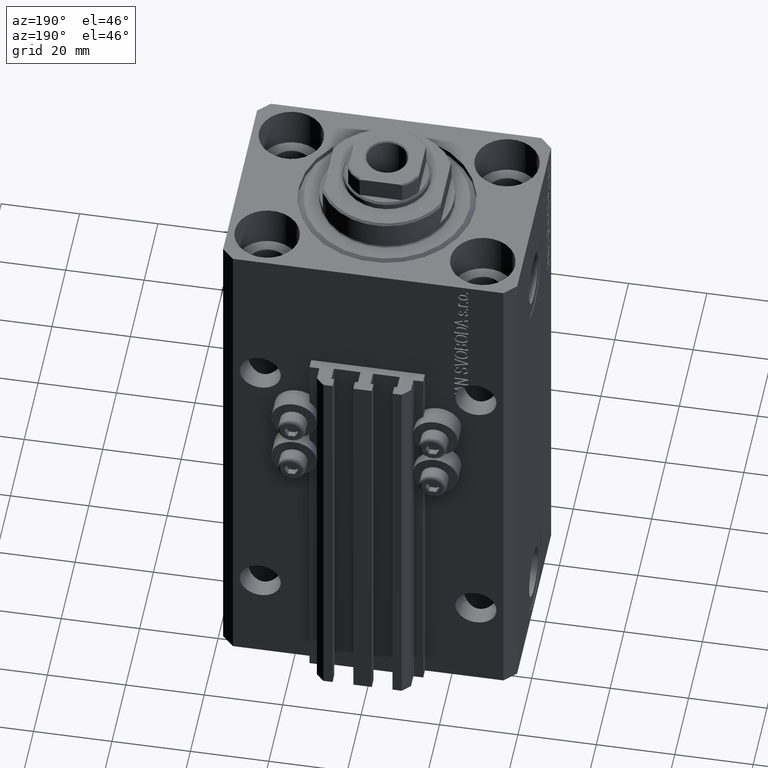
[diagram: clean part render]
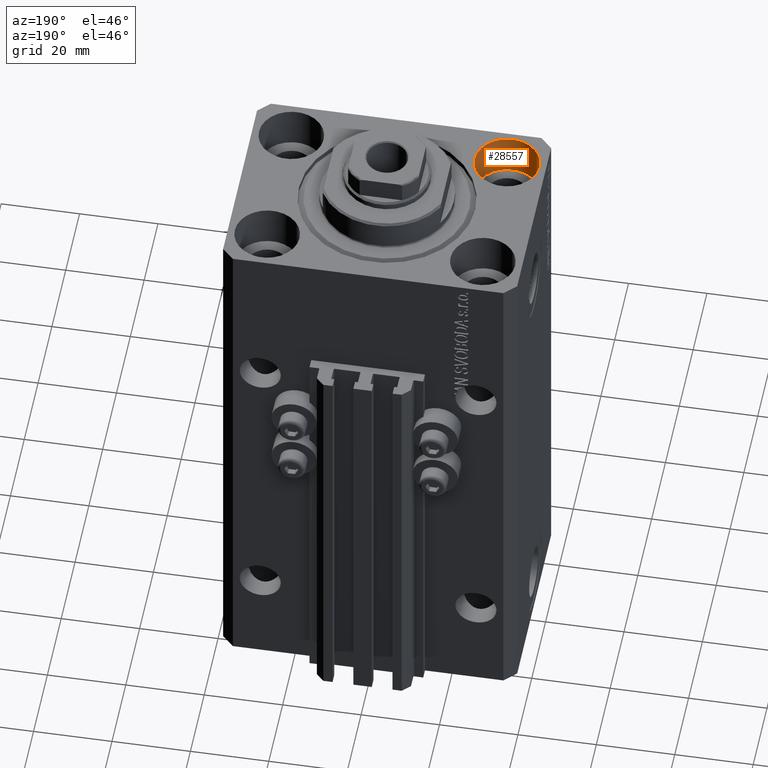
[diagram: same view with one face highlighted and labeled with its STEP entity id]
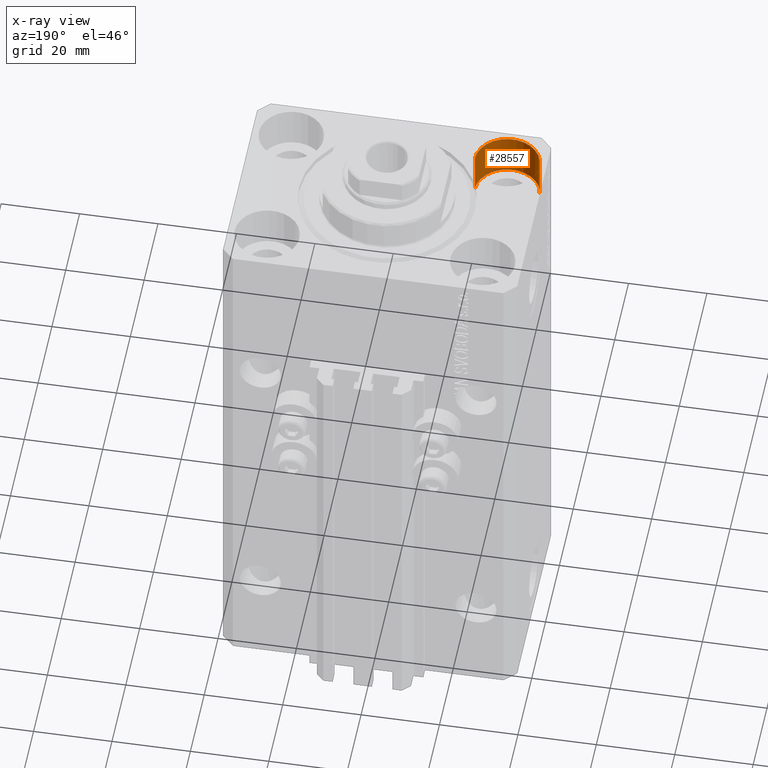
[diagram: x-ray of the same camera — body ghosted, the highlighted face saturated]
A machine part, auxiliary view. The second image highlights one B-rep face of the part: STEP entity #28557.
The next image is the same camera in x-ray: the body ghosted, the highlighted face saturated — about 0% of this face is hidden behind the body in this view.
In plain terms, the highlighted cylindrical surface (edge-blend (fillet) strip) has radius 8.25 mm, axis along (0, 0, 1).
Its self-contained STEP definition (entity closure, byte-faithful):
#293 = EDGE_CURVE ( 'NONE', #37992, #39993, #35498, .T. ) ;
#2803 = DIRECTION ( 'NONE',  ( 1.000000000000000000, 0.000000000000000000, 0.000000000000000000 ) ) ;
#2863 = ORIENTED_EDGE ( 'NONE', *, *, #5156, .F. ) ;
#4466 = CARTESIAN_POINT ( 'NONE',  ( -27.50000000000000355, -17.50000000000000000, -11.00000000000000000 ) ) ;
#4545 = DIRECTION ( 'NONE',  ( 1.000000000000000000, 0.000000000000000000, 0.000000000000000000 ) ) ;
#4914 = AXIS2_PLACEMENT_3D ( 'NONE', #4466, #19258, #23140 ) ;
#5156 = EDGE_CURVE ( 'NONE', #37992, #15840, #41266, .T. ) ;
#6202 = EDGE_CURVE ( 'NONE', #15840, #30269, #38141, .T. ) ;
#6461 = VECTOR ( 'NONE', #39091, 1000.000000000000000 ) ;
#6924 = FACE_OUTER_BOUND ( 'NONE', #34081, .T. ) ;
#7157 = EDGE_CURVE ( 'NONE', #39993, #30269, #8849, .T. ) ;
#8185 = DIRECTION ( 'NONE',  ( 0.000000000000000000, 0.000000000000000000, 1.000000000000000000 ) ) ;
#8849 = CIRCLE ( 'NONE', #36694, 8.250000000000000000 ) ;
#10535 = CARTESIAN_POINT ( 'NONE',  ( -19.25000000000000355, -17.50000000000000000, 0.000000000000000000 ) ) ;
#14671 = CARTESIAN_POINT ( 'NONE',  ( -27.50000000000000355, -17.50000000000000000, -11.00000000000000000 ) ) ;
#15840 = VERTEX_POINT ( 'NONE', #23908 ) ;
#17799 = DIRECTION ( 'NONE',  ( -0.000000000000000000, -0.000000000000000000, 1.000000000000000000 ) ) ;
#17830 = DIRECTION ( 'NONE',  ( -0.000000000000000000, -0.000000000000000000, 1.000000000000000000 ) ) ;
#19258 = DIRECTION ( 'NONE',  ( 0.000000000000000000, 0.000000000000000000, 1.000000000000000000 ) ) ;
#19362 = CARTESIAN_POINT ( 'NONE',  ( -35.75000000000000711, -17.50000000000000000, -11.00000000000000000 ) ) ;
#23140 = DIRECTION ( 'NONE',  ( 1.000000000000000000, 0.000000000000000000, 0.000000000000000000 ) ) ;
#23908 = CARTESIAN_POINT ( 'NONE',  ( -19.25000000000000355, -17.50000000000000000, -11.00000000000000000 ) ) ;
#26421 = VECTOR ( 'NONE', #17799, 1000.000000000000000 ) ;
#27971 = CARTESIAN_POINT ( 'NONE',  ( -19.25000000000000355, -17.50000000000000000, -11.00000000000000000 ) ) ;
#28557 = ADVANCED_FACE ( 'NONE', ( #6924 ), #29230, .F. ) ;
#29230 = CYLINDRICAL_SURFACE ( 'NONE', #37721, 8.250000000000000000 ) ;
#29389 = CARTESIAN_POINT ( 'NONE',  ( -35.75000000000000711, -17.50000000000000000, 0.000000000000000000 ) ) ;
#30269 = VERTEX_POINT ( 'NONE', #10535 ) ;
#32406 = ORIENTED_EDGE ( 'NONE', *, *, #7157, .T. ) ;
#34081 = EDGE_LOOP ( 'NONE', ( #2863, #42770, #32406, #37166 ) ) ;
#35498 = LINE ( 'NONE', #39120, #26421 ) ;
#36694 = AXIS2_PLACEMENT_3D ( 'NONE', #44980, #8185, #4545 ) ;
#37166 = ORIENTED_EDGE ( 'NONE', *, *, #6202, .F. ) ;
#37721 = AXIS2_PLACEMENT_3D ( 'NONE', #14671, #17830, #2803 ) ;
#37992 = VERTEX_POINT ( 'NONE', #19362 ) ;
#38141 = LINE ( 'NONE', #27971, #6461 ) ;
#39091 = DIRECTION ( 'NONE',  ( -0.000000000000000000, -0.000000000000000000, 1.000000000000000000 ) ) ;
#39120 = CARTESIAN_POINT ( 'NONE',  ( -35.75000000000000711, -17.50000000000000000, -11.00000000000000000 ) ) ;
#39993 = VERTEX_POINT ( 'NONE', #29389 ) ;
#41266 = CIRCLE ( 'NONE', #4914, 8.250000000000000000 ) ;
#42770 = ORIENTED_EDGE ( 'NONE', *, *, #293, .T. ) ;
#44980 = CARTESIAN_POINT ( 'NONE',  ( -27.50000000000000355, -17.50000000000000000, 0.000000000000000000 ) ) ;